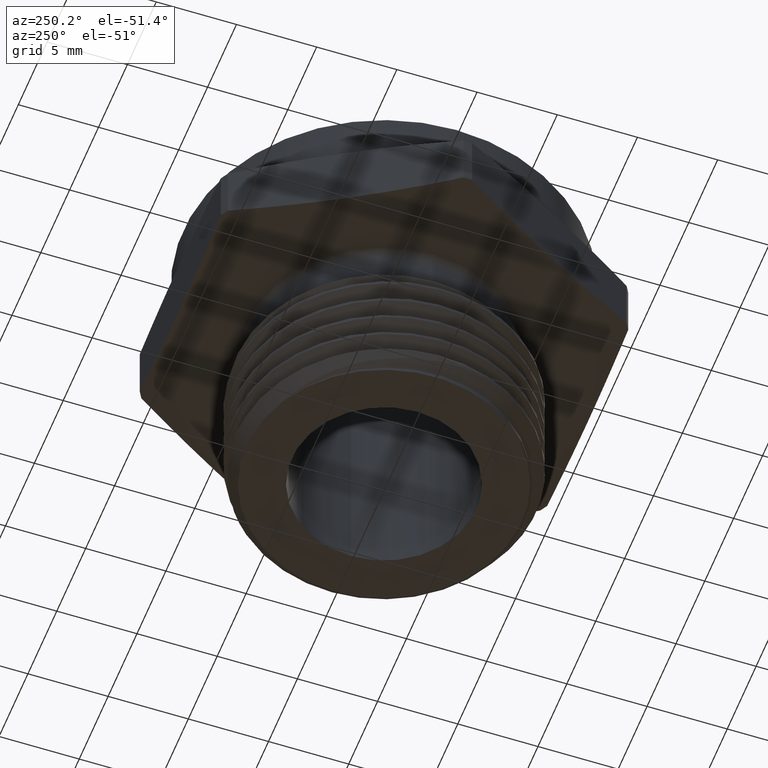
[diagram: clean part render]
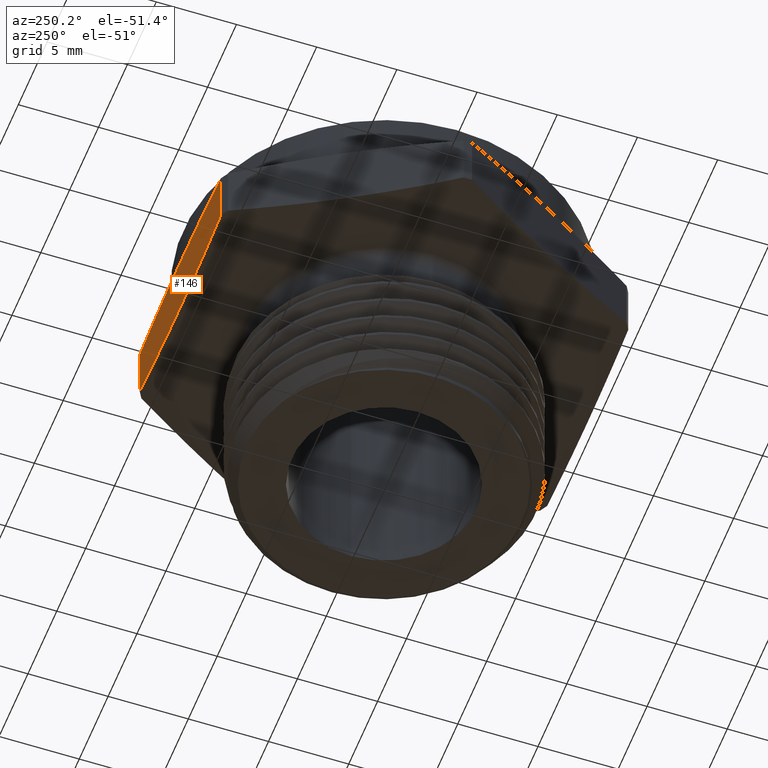
[diagram: same view with one face highlighted and labeled with its STEP entity id]
A machine part, auxiliary view. The second image highlights one B-rep face of the part: STEP entity #146.
In plain terms, the highlighted planar face has unit normal (0, -1, 0).
Its self-contained STEP definition (entity closure, byte-faithful):
#13 = EDGE_LOOP ( 'NONE', ( #2656, #2657, #2658, #2659 ) ) ;
#146 = ADVANCED_FACE ( 'NONE', ( #2597 ), #2750, .F. ) ;
#183 = AXIS2_PLACEMENT_3D ( 'NONE', #2697, #2945, #2944 ) ;
#625 = CARTESIAN_POINT ( 'NONE',  ( -0.2304247505594923800, 0.5000000000000001100, 0.01202302915555247500 ) ) ;
#626 = CARTESIAN_POINT ( 'NONE',  ( -0.1842048312148132100, 0.5000000000000001100, 0.008181783962476948600 ) ) ;
#630 = CARTESIAN_POINT ( 'NONE',  ( -0.2764798909560289800, 0.5000000000000000000, 0.01676014210570263600 ) ) ;
#631 = CARTESIAN_POINT ( 'NONE',  ( -0.09191216363009094300, 0.5000000000000000000, 0.002960465671903413300 ) ) ;
#632 = CARTESIAN_POINT ( 'NONE',  ( -0.04579363481263580600, 0.4999999999999999400, 0.001588433088826188800 ) ) ;
#633 = CARTESIAN_POINT ( 'NONE',  ( 0.04638156483337255200, 0.4999999999999999400, 0.001599952072553285600 ) ) ;
#634 = CARTESIAN_POINT ( 'NONE',  ( 0.09243824480201570700, 0.5000000000000001100, 0.002983096476316943100 ) ) ;
#635 = CARTESIAN_POINT ( 'NONE',  ( 0.1844964698020087300, 0.5000000000000001100, 0.008205478053863958900 ) ) ;
#636 = CARTESIAN_POINT ( 'NONE',  ( 0.2304983317507585700, 0.5000000000000001100, 0.01203059752709647300 ) ) ;
#637 = CARTESIAN_POINT ( 'NONE',  ( 0.2764798909560289800, 0.5000000000000000000, 0.01676014210570252900 ) ) ;
#670 = CARTESIAN_POINT ( 'NONE',  ( 0.1844964698020088200, 0.5000000000000001100, 0.1617945219461360800 ) ) ;
#671 = CARTESIAN_POINT ( 'NONE',  ( 0.2304983317507587100, 0.5000000000000001100, 0.1579694024729035900 ) ) ;
#675 = CARTESIAN_POINT ( 'NONE',  ( 0.2764798909560290400, 0.5000000000000000000, 0.1532398578942974800 ) ) ;
#676 = CARTESIAN_POINT ( 'NONE',  ( 0.09243824480201577600, 0.5000000000000000000, 0.1670169035236831700 ) ) ;
#677 = CARTESIAN_POINT ( 'NONE',  ( 0.04638156483337269700, 0.4999999999999999400, 0.1684000479274467800 ) ) ;
#678 = CARTESIAN_POINT ( 'NONE',  ( -0.04579363481263568100, 0.4999999999999999400, 0.1684115669111739300 ) ) ;
#679 = CARTESIAN_POINT ( 'NONE',  ( -0.09191216363009077600, 0.5000000000000001100, 0.1670395343280967600 ) ) ;
#680 = CARTESIAN_POINT ( 'NONE',  ( -0.1842048312148131300, 0.5000000000000001100, 0.1618182160375232500 ) ) ;
#681 = CARTESIAN_POINT ( 'NONE',  ( -0.2304247505594924400, 0.5000000000000001100, 0.1579769708444477300 ) ) ;
#682 = CARTESIAN_POINT ( 'NONE',  ( -0.2764798909560289800, 0.5000000000000000000, 0.1532398578942975600 ) ) ;
#757 = CARTESIAN_POINT ( 'NONE',  ( 0.2764798909560289800, 0.5000000000000000000, -3.385902134879091900E-017 ) ) ;
#758 = DIRECTION ( 'NONE',  ( 1.224646799147349800E-016, 0.0000000000000000000, 1.000000000000000000 ) ) ;
#759 = CARTESIAN_POINT ( 'NONE',  ( -0.2764798909560289800, 0.5000000000000000000, 3.385902134879091900E-017 ) ) ;
#760 = DIRECTION ( 'NONE',  ( -1.224646799147349800E-016, -0.0000000000000000000, -1.000000000000000000 ) ) ;
#871 = LINE ( 'NONE', #757, #874 ) ;
#873 = LINE ( 'NONE', #759, #876 ) ;
#874 = VECTOR ( 'NONE', #758, 39.37007874015748100 ) ;
#876 = VECTOR ( 'NONE', #760, 39.37007874015748100 ) ;
#922 = B_SPLINE_CURVE_WITH_KNOTS ( 'NONE', 3,
 ( #630, #625, #626, #631, #632, #633, #634, #635, #636, #637 ),
 .UNSPECIFIED., .F., .F.,
 ( 4, 2, 2, 2, 4 ),
 ( 0.01247922833637218900, 0.01600441147606443400, 0.01952959461575667900, 0.02305477775544891700, 0.02657996089514116200 ),
 .UNSPECIFIED. ) ;
#925 = B_SPLINE_CURVE_WITH_KNOTS ( 'NONE', 3,
 ( #675, #671, #670, #676, #677, #678, #679, #680, #681, #682 ),
 .UNSPECIFIED., .F., .F.,
 ( 4, 2, 2, 2, 4 ),
 ( 0.02802711774646592400, 0.03154885258410232400, 0.03507058742173872800, 0.03859232225937511700, 0.04211405709701152000 ),
 .UNSPECIFIED. ) ;
#1804 = CARTESIAN_POINT ( 'NONE',  ( 0.2764798909560290400, 0.5000000000000000000, 0.1532398578942974800 ) ) ;
#1818 = CARTESIAN_POINT ( 'NONE',  ( -0.2764798909560289800, 0.5000000000000000000, 0.01676014210570263600 ) ) ;
#1819 = CARTESIAN_POINT ( 'NONE',  ( 0.2764798909560289800, 0.5000000000000000000, 0.01676014210570252900 ) ) ;
#1843 = CARTESIAN_POINT ( 'NONE',  ( -0.2764798909560289800, 0.5000000000000000000, 0.1532398578942975600 ) ) ;
#2390 = EDGE_CURVE ( 'NONE', #2474, #2475, #922, .T. ) ;
#2400 = EDGE_CURVE ( 'NONE', #2459, #2674, #925, .T. ) ;
#2422 = EDGE_CURVE ( 'NONE', #2475, #2459, #871, .T. ) ;
#2423 = EDGE_CURVE ( 'NONE', #2674, #2474, #873, .T. ) ;
#2459 = VERTEX_POINT ( 'NONE', #1804 ) ;
#2474 = VERTEX_POINT ( 'NONE', #1818 ) ;
#2475 = VERTEX_POINT ( 'NONE', #1819 ) ;
#2597 = FACE_OUTER_BOUND ( 'NONE', #13, .T. ) ;
#2656 = ORIENTED_EDGE ( 'NONE', *, *, #2423, .F. ) ;
#2657 = ORIENTED_EDGE ( 'NONE', *, *, #2400, .F. ) ;
#2658 = ORIENTED_EDGE ( 'NONE', *, *, #2422, .F. ) ;
#2659 = ORIENTED_EDGE ( 'NONE', *, *, #2390, .F. ) ;
#2674 = VERTEX_POINT ( 'NONE', #1843 ) ;
#2697 = CARTESIAN_POINT ( 'NONE',  ( 0.2886751345948128100, 0.5000000000000000000, 0.1699999999999999800 ) ) ;
#2750 = PLANE ( 'NONE',  #183 ) ;
#2944 = DIRECTION ( 'NONE',  ( 0.0000000000000000000, -0.0000000000000000000, -1.000000000000000000 ) ) ;
#2945 = DIRECTION ( 'NONE',  ( 0.0000000000000000000, -1.000000000000000000, 0.0000000000000000000 ) ) ;